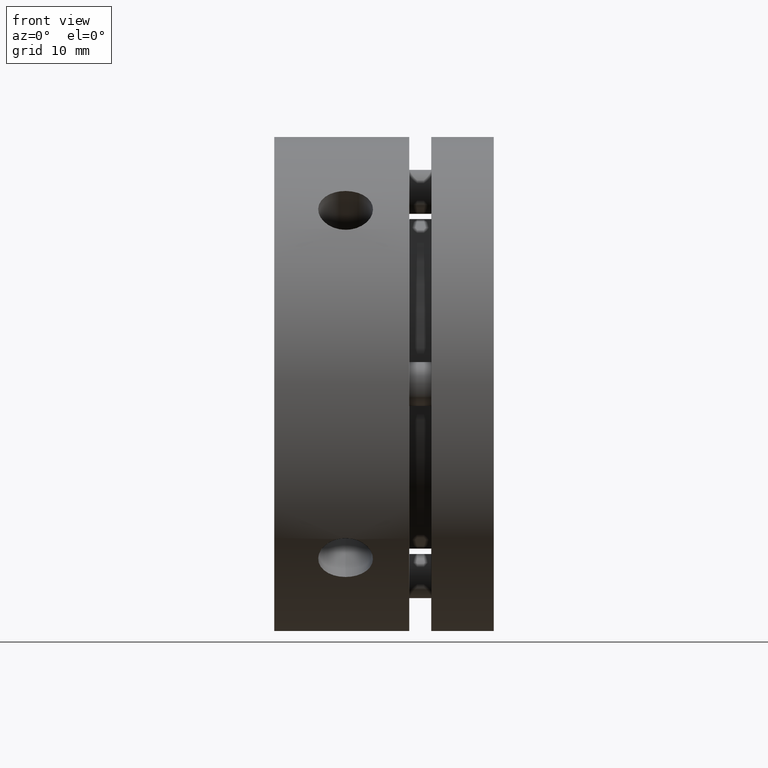
[diagram: clean part render]
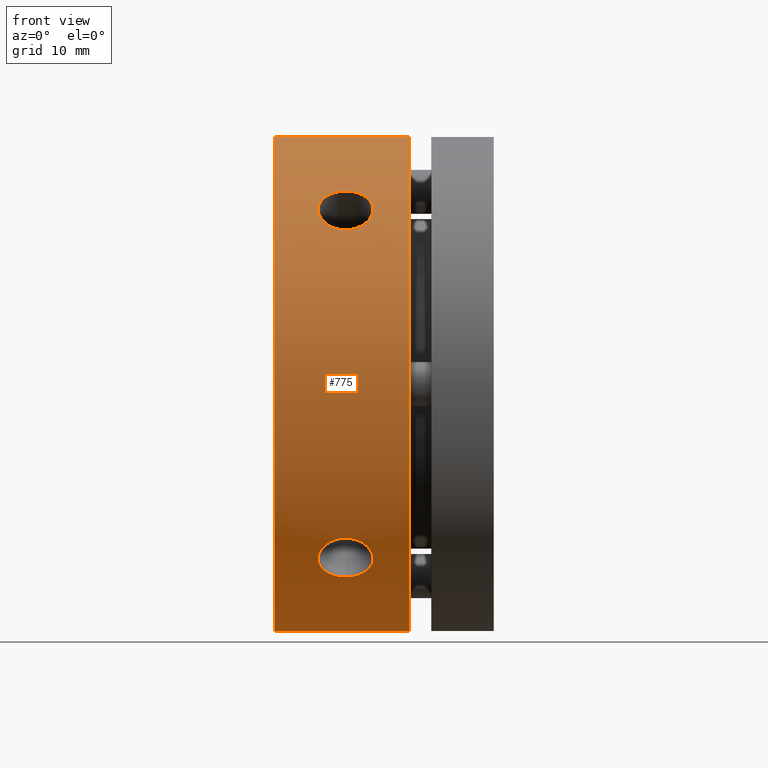
[diagram: same view with one face highlighted and labeled with its STEP entity id]
A machine part, front view. The second image highlights one B-rep face of the part: STEP entity #775.
In plain terms, the highlighted cylindrical surface (partial cylindrical patch) has radius 22.5 mm, axis along (1, 0, 0).
Its self-contained STEP definition (entity closure, byte-faithful):
#18 = CARTESIAN_POINT ( 'NONE',  ( 9.999999999999994700, 2.755455298081544800E-015, 22.50000000000000000 ) ) ;
#133 = EDGE_LOOP ( 'NONE', ( #1150, #1151, #1152, #1153 ) ) ;
#134 = EDGE_LOOP ( 'NONE', ( #1156, #1157 ) ) ;
#331 = EDGE_CURVE ( 'NONE', #454, #453, #1518, .T. ) ;
#334 = EDGE_CURVE ( 'NONE', #447, #440, #1520, .T. ) ;
#339 = EDGE_CURVE ( 'NONE', #449, #450, #418, .T. ) ;
#343 = EDGE_CURVE ( 'NONE', #456, #457, #419, .T. ) ;
#418 = B_SPLINE_CURVE_WITH_KNOTS ( 'NONE', 3,
 ( #2132, #2129, #2095, #2133, #2134, #2135, #2136, #2137, #2138, #2139, #2140, #2141, #2142, #2143, #2144, #2145, #2146, #2147, #2148, #2149, #2150, #2151, #2152, #2153, #2154, #2155, #2156, #2157, #2158, #2159, #2160, #2161, #2162, #2163 ),
 .UNSPECIFIED., .F., .F.,
 ( 4, 2, 2, 2, 2, 2, 2, 2, 2, 2, 2, 2, 2, 2, 2, 2, 4 ),
 ( 0.01173242231639721000, 0.01222119876057258500, 0.01270997520474796200, 0.01319875164892333700, 0.01368752809309871400, 0.01417630453727408900, 0.01466508098144946400, 0.01515385742562484100, 0.01564263386980021400, 0.01613141031397559100, 0.01662018675815097100, 0.01710896320232634800, 0.01759773964650172800, 0.01808651609067710900, 0.01857529253485248900, 0.01906406897902786600, 0.01955284542320324600 ),
 .UNSPECIFIED. ) ;
#419 = B_SPLINE_CURVE_WITH_KNOTS ( 'NONE', 3,
 ( #2173, #2171, #2166, #2174, #2175, #2176, #2177, #2178, #2179, #2180, #2181, #2182, #2183, #2184, #2185, #2186, #2187, #2188, #2189, #2190, #2191, #2192, #2193, #2194, #2195, #2196, #2197, #2198, #2199, #2200, #2201, #2202, #2203, #2204 ),
 .UNSPECIFIED., .F., .F.,
 ( 4, 2, 2, 2, 2, 2, 2, 2, 2, 2, 2, 2, 2, 2, 2, 2, 4 ),
 ( 0.01173242231639721300, 0.01222119876057258800, 0.01270997520474796300, 0.01319875164892334000, 0.01368752809309871500, 0.01417630453727409000, 0.01466508098144946700, 0.01515385742562484200, 0.01564263386980021700, 0.01613141031397559400, 0.01662018675815097100, 0.01710896320232635100, 0.01759773964650172800, 0.01808651609067710900, 0.01857529253485248900, 0.01906406897902786900, 0.01955284542320324600 ),
 .UNSPECIFIED. ) ;
#420 = B_SPLINE_CURVE_WITH_KNOTS ( 'NONE', 3,
 ( #3302, #3303, #3308, #3309, #3310, #3311, #3312, #3313, #3314, #3315, #3316, #3317, #3318, #3319, #3320, #3321, #3322, #3323, #3324, #3325, #3326, #3327, #3328, #3329, #3330, #3331, #3332, #3333, #3334, #3335, #3336, #3337, #3338, #3339 ),
 .UNSPECIFIED., .F., .F.,
 ( 4, 2, 2, 2, 2, 2, 2, 2, 2, 2, 2, 2, 2, 2, 2, 2, 4 ),
 ( 0.003911999203216443900, 0.004400775647790240700, 0.004889552092364036700, 0.005378328536937833500, 0.005867104981511632100, 0.006355881426085431600, 0.006844657870659230100, 0.007333434315233028700, 0.007822210759806828100, 0.008310987204380625900, 0.008799763648954423600, 0.009288540093528221300, 0.009777316538102020700, 0.01026609298267581800, 0.01075486942724961800, 0.01124364587182341600, 0.01173242231639721300 ),
 .UNSPECIFIED. ) ;
#421 = B_SPLINE_CURVE_WITH_KNOTS ( 'NONE', 3,
 ( #3298, #3307, #3342, #3343, #3344, #3345, #3346, #3347, #3348, #3349, #3350, #3351, #3352, #3353, #3354, #3355, #3356, #3357, #3358, #3359, #3360, #3361, #3362, #3363, #3364, #3365, #3366, #3367, #3368, #3369, #3370, #3371, #3372, #3373 ),
 .UNSPECIFIED., .F., .F.,
 ( 4, 2, 2, 2, 2, 2, 2, 2, 2, 2, 2, 2, 2, 2, 2, 2, 4 ),
 ( 0.003911999203216442100, 0.004400775647790240700, 0.004889552092364038400, 0.005378328536937837000, 0.005867104981511637300, 0.006355881426085438500, 0.006844657870659238800, 0.007333434315233039100, 0.007822210759806835100, 0.008310987204380632800, 0.008799763648954430500, 0.009288540093528226500, 0.009777316538102022400, 0.01026609298267581800, 0.01075486942724961600, 0.01124364587182341200, 0.01173242231639721000 ),
 .UNSPECIFIED. ) ;
#440 = VERTEX_POINT ( 'NONE', #2370 ) ;
#447 = VERTEX_POINT ( 'NONE', #2362 ) ;
#449 = VERTEX_POINT ( 'NONE', #2379 ) ;
#450 = VERTEX_POINT ( 'NONE', #2380 ) ;
#453 = VERTEX_POINT ( 'NONE', #2382 ) ;
#454 = VERTEX_POINT ( 'NONE', #2383 ) ;
#456 = VERTEX_POINT ( 'NONE', #2385 ) ;
#457 = VERTEX_POINT ( 'NONE', #2386 ) ;
#775 = ADVANCED_FACE ( 'NONE', ( #3064, #3068, #3065 ), #3071, .T. ) ;
#791 = EDGE_LOOP ( 'NONE', ( #1154, #1155 ) ) ;
#905 = EDGE_CURVE ( 'NONE', #440, #453, #3224, .T. ) ;
#906 = EDGE_CURVE ( 'NONE', #457, #456, #420, .T. ) ;
#907 = EDGE_CURVE ( 'NONE', #450, #449, #421, .T. ) ;
#908 = EDGE_CURVE ( 'NONE', #454, #447, #3225, .T. ) ;
#1150 = ORIENTED_EDGE ( 'NONE', *, *, #331, .F. ) ;
#1151 = ORIENTED_EDGE ( 'NONE', *, *, #908, .T. ) ;
#1152 = ORIENTED_EDGE ( 'NONE', *, *, #334, .T. ) ;
#1153 = ORIENTED_EDGE ( 'NONE', *, *, #905, .T. ) ;
#1154 = ORIENTED_EDGE ( 'NONE', *, *, #339, .T. ) ;
#1155 = ORIENTED_EDGE ( 'NONE', *, *, #907, .T. ) ;
#1156 = ORIENTED_EDGE ( 'NONE', *, *, #343, .T. ) ;
#1157 = ORIENTED_EDGE ( 'NONE', *, *, #906, .T. ) ;
#1352 = AXIS2_PLACEMENT_3D ( 'NONE', #2696, #2697, #2695 ) ;
#1442 = AXIS2_PLACEMENT_3D ( 'NONE', #3304, #3305, #3306 ) ;
#1443 = AXIS2_PLACEMENT_3D ( 'NONE', #3374, #3375, #3376 ) ;
#1518 = LINE ( 'NONE', #18, #1521 ) ;
#1520 = LINE ( 'NONE', #2053, #1525 ) ;
#1521 = VECTOR ( 'NONE', #2048, 1000.000000000000000 ) ;
#1525 = VECTOR ( 'NONE', #2049, 1000.000000000000000 ) ;
#2048 = DIRECTION ( 'NONE',  ( 1.000000000000000000, 0.0000000000000000000, 0.0000000000000000000 ) ) ;
#2049 = DIRECTION ( 'NONE',  ( 1.000000000000000000, 0.0000000000000000000, 0.0000000000000000000 ) ) ;
#2053 = CARTESIAN_POINT ( 'NONE',  ( 9.999999999999994700, 0.0000000000000000000, -22.50000000000000000 ) ) ;
#2095 = CARTESIAN_POINT ( 'NONE',  ( 6.171090007578761100, -17.56890217144555400, 14.05648292721125800 ) ) ;
#2129 = CARTESIAN_POINT ( 'NONE',  ( 6.336834521531878700, -17.57915525380826700, 14.04362134787553300 ) ) ;
#2132 = CARTESIAN_POINT ( 'NONE',  ( 6.499999999999992900, -17.57915525380826700, 14.04362134787552700 ) ) ;
#2133 = CARTESIAN_POINT ( 'NONE',  ( 5.850448389558097000, -17.52861790615664400, 14.10668600674058500 ) ) ;
#2134 = CARTESIAN_POINT ( 'NONE',  ( 5.694589796624702800, -17.49880229077756900, 14.14375807418896400 ) ) ;
#2135 = CARTESIAN_POINT ( 'NONE',  ( 5.391840746390807100, -17.41927253684769300, 14.24159114565264200 ) ) ;
#2136 = CARTESIAN_POINT ( 'NONE',  ( 5.245677012930385400, -17.36944586711570400, 14.30246863063636600 ) ) ;
#2137 = CARTESIAN_POINT ( 'NONE',  ( 4.975028642675195700, -17.25334612264189400, 14.44230958791972700 ) ) ;
#2138 = CARTESIAN_POINT ( 'NONE',  ( 4.848778738432797800, -17.18664625045742900, 14.52180719922919900 ) ) ;
#2139 = CARTESIAN_POINT ( 'NONE',  ( 4.615488460062465500, -17.03466803667306100, 14.69978838454135500 ) ) ;
#2140 = CARTESIAN_POINT ( 'NONE',  ( 4.512201296588721700, -16.95184193531017100, 14.79538561576184300 ) ) ;
#2141 = CARTESIAN_POINT ( 'NONE',  ( 4.331257138296142500, -16.77231696932634000, 14.99859206723352600 ) ) ;
#2142 = CARTESIAN_POINT ( 'NONE',  ( 4.252970886097018300, -16.67444543535752300, 15.10747557303519200 ) ) ;
#2143 = CARTESIAN_POINT ( 'NONE',  ( 4.127594110941597400, -16.46951109140387400, 15.33062794463080700 ) ) ;
#2144 = CARTESIAN_POINT ( 'NONE',  ( 4.080313794223385100, -16.36293210257587200, 15.44442146952498600 ) ) ;
#2145 = CARTESIAN_POINT ( 'NONE',  ( 4.016349612376156000, -16.14119281509124400, 15.67601977632968700 ) ) ;
#2146 = CARTESIAN_POINT ( 'NONE',  ( 3.999880785371837000, -16.02548652508895800, 15.79433736107236200 ) ) ;
#2147 = CARTESIAN_POINT ( 'NONE',  ( 4.000120529971881400, -15.79175401374240700, 16.02803220019925200 ) ) ;
#2148 = CARTESIAN_POINT ( 'NONE',  ( 4.016463612904607000, -15.67557156238662900, 16.14162339942732400 ) ) ;
#2149 = CARTESIAN_POINT ( 'NONE',  ( 4.080258677617862900, -15.44465651224615100, 16.36270561353397600 ) ) ;
#2150 = CARTESIAN_POINT ( 'NONE',  ( 4.128496438647709400, -15.32868502898407400, 16.47131874734074600 ) ) ;
#2151 = CARTESIAN_POINT ( 'NONE',  ( 4.254206005333722700, -15.10561993020592600, 16.67612582461720200 ) ) ;
#2152 = CARTESIAN_POINT ( 'NONE',  ( 4.331087587242889100, -14.99875953336863300, 16.77217083986406700 ) ) ;
#2153 = CARTESIAN_POINT ( 'NONE',  ( 4.512672305383290400, -14.79487964044526100, 16.95228712139282500 ) ) ;
#2154 = CARTESIAN_POINT ( 'NONE',  ( 4.618250905935206600, -14.69754720084648100, 17.03659122857233800 ) ) ;
#2155 = CARTESIAN_POINT ( 'NONE',  ( 4.848825465913805000, -14.52190685513345500, 17.18655159423804300 ) ) ;
#2156 = CARTESIAN_POINT ( 'NONE',  ( 4.974651334486486200, -14.44243566964261100, 17.25324486753801500 ) ) ;
#2157 = CARTESIAN_POINT ( 'NONE',  ( 5.247985968824259800, -14.30134497684619700, 17.37037530925075800 ) ) ;
#2158 = CARTESIAN_POINT ( 'NONE',  ( 5.393313186711863800, -14.24108610244663200, 17.41968383630842600 ) ) ;
#2159 = CARTESIAN_POINT ( 'NONE',  ( 5.694115060324576500, -14.14394080737749900, 17.49865299877808400 ) ) ;
#2160 = CARTESIAN_POINT ( 'NONE',  ( 5.851819053499025500, -14.10634303127202900, 17.52889400127216700 ) ) ;
#2161 = CARTESIAN_POINT ( 'NONE',  ( 6.174556241274206800, -14.05607052486627000, 17.56923219790033000 ) ) ;
#2162 = CARTESIAN_POINT ( 'NONE',  ( 6.336834231173869900, -14.04362134787551900, 17.57915525380825300 ) ) ;
#2163 = CARTESIAN_POINT ( 'NONE',  ( 6.499999999999992900, -14.04362134787552600, 17.57915525380826700 ) ) ;
#2166 = CARTESIAN_POINT ( 'NONE',  ( 6.171090007578761100, -14.05648292721125800, -17.56890217144555400 ) ) ;
#2171 = CARTESIAN_POINT ( 'NONE',  ( 6.336834521531878700, -14.04362134787553300, -17.57915525380826700 ) ) ;
#2173 = CARTESIAN_POINT ( 'NONE',  ( 6.499999999999992900, -14.04362134787552700, -17.57915525380826700 ) ) ;
#2174 = CARTESIAN_POINT ( 'NONE',  ( 5.850448389558098800, -14.10668600674058700, -17.52861790615664400 ) ) ;
#2175 = CARTESIAN_POINT ( 'NONE',  ( 5.694589796624701900, -14.14375807418897000, -17.49880229077756900 ) ) ;
#2176 = CARTESIAN_POINT ( 'NONE',  ( 5.391840746390807100, -14.24159114565264000, -17.41927253684768900 ) ) ;
#2177 = CARTESIAN_POINT ( 'NONE',  ( 5.245677012930383600, -14.30246863063636700, -17.36944586711570100 ) ) ;
#2178 = CARTESIAN_POINT ( 'NONE',  ( 4.975028642675193100, -14.44230958791973100, -17.25334612264189400 ) ) ;
#2179 = CARTESIAN_POINT ( 'NONE',  ( 4.848778738432796900, -14.52180719922919900, -17.18664625045742900 ) ) ;
#2180 = CARTESIAN_POINT ( 'NONE',  ( 4.615488460062466400, -14.69978838454135200, -17.03466803667306100 ) ) ;
#2181 = CARTESIAN_POINT ( 'NONE',  ( 4.512201296588719900, -14.79538561576184100, -16.95184193531017100 ) ) ;
#2182 = CARTESIAN_POINT ( 'NONE',  ( 4.331257138296142500, -14.99859206723352600, -16.77231696932634000 ) ) ;
#2183 = CARTESIAN_POINT ( 'NONE',  ( 4.252970886097018300, -15.10747557303518800, -16.67444543535752300 ) ) ;
#2184 = CARTESIAN_POINT ( 'NONE',  ( 4.127594110941597400, -15.33062794463080700, -16.46951109140387400 ) ) ;
#2185 = CARTESIAN_POINT ( 'NONE',  ( 4.080313794223385100, -15.44442146952498600, -16.36293210257587200 ) ) ;
#2186 = CARTESIAN_POINT ( 'NONE',  ( 4.016349612376156000, -15.67601977632968700, -16.14119281509124400 ) ) ;
#2187 = CARTESIAN_POINT ( 'NONE',  ( 3.999880785371837000, -15.79433736107236200, -16.02548652508895800 ) ) ;
#2188 = CARTESIAN_POINT ( 'NONE',  ( 4.000120529971881400, -16.02803220019925200, -15.79175401374240700 ) ) ;
#2189 = CARTESIAN_POINT ( 'NONE',  ( 4.016463612904607000, -16.14162339942732400, -15.67557156238662900 ) ) ;
#2190 = CARTESIAN_POINT ( 'NONE',  ( 4.080258677617862900, -16.36270561353397600, -15.44465651224615100 ) ) ;
#2191 = CARTESIAN_POINT ( 'NONE',  ( 4.128496438647709400, -16.47131874734074600, -15.32868502898407400 ) ) ;
#2192 = CARTESIAN_POINT ( 'NONE',  ( 4.254206005333722700, -16.67612582461720200, -15.10561993020592200 ) ) ;
#2193 = CARTESIAN_POINT ( 'NONE',  ( 4.331087587242890000, -16.77217083986406700, -14.99875953336863300 ) ) ;
#2194 = CARTESIAN_POINT ( 'NONE',  ( 4.512672305383292200, -16.95228712139282500, -14.79487964044526100 ) ) ;
#2195 = CARTESIAN_POINT ( 'NONE',  ( 4.618250905935206600, -17.03659122857233800, -14.69754720084648300 ) ) ;
#2196 = CARTESIAN_POINT ( 'NONE',  ( 4.848825465913805000, -17.18655159423804300, -14.52190685513345500 ) ) ;
#2197 = CARTESIAN_POINT ( 'NONE',  ( 4.974651334486484400, -17.25324486753801500, -14.44243566964261500 ) ) ;
#2198 = CARTESIAN_POINT ( 'NONE',  ( 5.247985968824258100, -17.37037530925075800, -14.30134497684619700 ) ) ;
#2199 = CARTESIAN_POINT ( 'NONE',  ( 5.393313186711865500, -17.41968383630842600, -14.24108610244663000 ) ) ;
#2200 = CARTESIAN_POINT ( 'NONE',  ( 5.694115060324575600, -17.49865299877808400, -14.14394080737749900 ) ) ;
#2201 = CARTESIAN_POINT ( 'NONE',  ( 5.851819053499026400, -17.52889400127216700, -14.10634303127202900 ) ) ;
#2202 = CARTESIAN_POINT ( 'NONE',  ( 6.174556241274204100, -17.56923219790033000, -14.05607052486627000 ) ) ;
#2203 = CARTESIAN_POINT ( 'NONE',  ( 6.336834231173869900, -17.57915525380825300, -14.04362134787551900 ) ) ;
#2204 = CARTESIAN_POINT ( 'NONE',  ( 6.499999999999992900, -17.57915525380826700, -14.04362134787552600 ) ) ;
#2362 = CARTESIAN_POINT ( 'NONE',  ( -5.204170427930421300E-015, 0.0000000000000000000, -22.50000000000000000 ) ) ;
#2370 = CARTESIAN_POINT ( 'NONE',  ( 12.30000000000000100, 0.0000000000000000000, -22.50000000000000000 ) ) ;
#2379 = CARTESIAN_POINT ( 'NONE',  ( 6.499999999999992900, -17.57915525380826700, 14.04362134787552700 ) ) ;
#2380 = CARTESIAN_POINT ( 'NONE',  ( 6.499999999999992900, -14.04362134787552600, 17.57915525380826700 ) ) ;
#2382 = CARTESIAN_POINT ( 'NONE',  ( 12.30000000000000100, 2.755455298081544800E-015, 22.50000000000000000 ) ) ;
#2383 = CARTESIAN_POINT ( 'NONE',  ( -5.204170427930421300E-015, 2.755455298081544800E-015, 22.50000000000000000 ) ) ;
#2385 = CARTESIAN_POINT ( 'NONE',  ( 6.499999999999992900, -14.04362134787552700, -17.57915525380826700 ) ) ;
#2386 = CARTESIAN_POINT ( 'NONE',  ( 6.499999999999992900, -17.57915525380826700, -14.04362134787552600 ) ) ;
#2695 = DIRECTION ( 'NONE',  ( 0.0000000000000000000, 0.0000000000000000000, -1.000000000000000000 ) ) ;
#2696 = CARTESIAN_POINT ( 'NONE',  ( 9.999999999999994700, 0.0000000000000000000, 0.0000000000000000000 ) ) ;
#2697 = DIRECTION ( 'NONE',  ( 1.000000000000000000, 0.0000000000000000000, 0.0000000000000000000 ) ) ;
#3064 = FACE_OUTER_BOUND ( 'NONE', #133, .T. ) ;
#3065 = FACE_BOUND ( 'NONE', #134, .T. ) ;
#3068 = FACE_BOUND ( 'NONE', #791, .T. ) ;
#3071 = CYLINDRICAL_SURFACE ( 'NONE', #1352, 22.50000000000000000 ) ;
#3224 = CIRCLE ( 'NONE', #1442, 22.50000000000000000 ) ;
#3225 = CIRCLE ( 'NONE', #1443, 22.50000000000000000 ) ;
#3298 = CARTESIAN_POINT ( 'NONE',  ( 6.499999999999992900, -14.04362134787552600, 17.57915525380826700 ) ) ;
#3302 = CARTESIAN_POINT ( 'NONE',  ( 6.499999999999992900, -17.57915525380826700, -14.04362134787552600 ) ) ;
#3303 = CARTESIAN_POINT ( 'NONE',  ( 6.663165768959119700, -17.57915525380826700, -14.04362134787552900 ) ) ;
#3304 = CARTESIAN_POINT ( 'NONE',  ( 12.30000000000000100, 0.0000000000000000000, 0.0000000000000000000 ) ) ;
#3305 = DIRECTION ( 'NONE',  ( -1.000000000000000000, -0.0000000000000000000, -0.0000000000000000000 ) ) ;
#3306 = DIRECTION ( 'NONE',  ( 0.0000000000000000000, 0.0000000000000000000, -1.000000000000000000 ) ) ;
#3307 = CARTESIAN_POINT ( 'NONE',  ( 6.663165768959118800, -14.04362134787553100, 17.57915525380827000 ) ) ;
#3308 = CARTESIAN_POINT ( 'NONE',  ( 6.828910579315096800, -17.56890213454291700, -14.05648297359296700 ) ) ;
#3309 = CARTESIAN_POINT ( 'NONE',  ( 7.149552736107016100, -17.52861772789931600, -14.10668622849566700 ) ) ;
#3310 = CARTESIAN_POINT ( 'NONE',  ( 7.305411583109709300, -17.49880200840960900, -14.14375842453337000 ) ) ;
#3311 = CARTESIAN_POINT ( 'NONE',  ( 7.608161107862806600, -17.41927196967200700, -14.24159184036946600 ) ) ;
#3312 = CARTESIAN_POINT ( 'NONE',  ( 7.754325012955959600, -17.36944513332652200, -14.30246952368510600 ) ) ;
#3313 = CARTESIAN_POINT ( 'NONE',  ( 8.024973668066593300, -17.25334499615012600, -14.44231093556025900 ) ) ;
#3314 = CARTESIAN_POINT ( 'NONE',  ( 8.151223738080966900, -17.18664486059570600, -14.52180884691466300 ) ) ;
#3315 = CARTESIAN_POINT ( 'NONE',  ( 8.384514047468654100, -17.03466617964698700, -14.69979053927505900 ) ) ;
#3316 = CARTESIAN_POINT ( 'NONE',  ( 8.487801188851296500, -16.95183982260646600, -14.79538804010602600 ) ) ;
#3317 = CARTESIAN_POINT ( 'NONE',  ( 8.668745208405839600, -16.77231428777834700, -14.99859506955919400 ) ) ;
#3318 = CARTESIAN_POINT ( 'NONE',  ( 8.747031343587554600, -16.67444242258249400, -15.10747890195836300 ) ) ;
#3319 = CARTESIAN_POINT ( 'NONE',  ( 8.872407677215917900, -16.46950753680329200, -15.33063176690103400 ) ) ;
#3320 = CARTESIAN_POINT ( 'NONE',  ( 8.919687729553141200, -16.36292826254909700, -15.44442554204110600 ) ) ;
#3321 = CARTESIAN_POINT ( 'NONE',  ( 8.983651255278804400, -16.14118836488816600, -15.67602436264305900 ) ) ;
#3322 = CARTESIAN_POINT ( 'NONE',  ( 9.000119675582380900, -16.02548130832110500, -15.79434265027212400 ) ) ;
#3323 = CARTESIAN_POINT ( 'NONE',  ( 8.999878998819482900, -15.79174925268014500, -16.02803688721829200 ) ) ;
#3324 = CARTESIAN_POINT ( 'NONE',  ( 8.983535530076769900, -15.67556702584186500, -16.14162780151749000 ) ) ;
#3325 = CARTESIAN_POINT ( 'NONE',  ( 8.919739796451363400, -15.44465242343004600, -16.36270946951695400 ) ) ;
#3326 = CARTESIAN_POINT ( 'NONE',  ( 8.871501739446756600, -15.32868115883968400, -16.47132234499850900 ) ) ;
#3327 = CARTESIAN_POINT ( 'NONE',  ( 8.745791791740741100, -15.10561665851702000, -16.67612878422767500 ) ) ;
#3328 = CARTESIAN_POINT ( 'NONE',  ( 8.668910078699754600, -14.99875654375770900, -16.77217351029027600 ) ) ;
#3329 = CARTESIAN_POINT ( 'NONE',  ( 8.487325183862056500, -14.79487719040261100, -16.95228925659015900 ) ) ;
#3330 = CARTESIAN_POINT ( 'NONE',  ( 8.381746579683758500, -14.69754505017647300, -17.03659308143048500 ) ) ;
#3331 = CARTESIAN_POINT ( 'NONE',  ( 8.151172126953536400, -14.52190525684172500, -17.18655294221400700 ) ) ;
#3332 = CARTESIAN_POINT ( 'NONE',  ( 8.025346351435015200, -14.44243431866586900, -17.25324599686321400 ) ) ;
#3333 = CARTESIAN_POINT ( 'NONE',  ( 7.752011969598574300, -14.30134406918638000, -17.37037605499666500 ) ) ;
#3334 = CARTESIAN_POINT ( 'NONE',  ( 7.606684984272919600, -14.24108541757735400, -17.41968439543205000 ) ) ;
#3335 = CARTESIAN_POINT ( 'NONE',  ( 7.305883558449693300, -14.14394045548628800, -17.49865328243438600 ) ) ;
#3336 = CARTESIAN_POINT ( 'NONE',  ( 7.148179801653844500, -14.10634280690164000, -17.52889418162070000 ) ) ;
#3337 = CARTESIAN_POINT ( 'NONE',  ( 6.825443181402799400, -14.05607048097588700, -17.56923223280175600 ) ) ;
#3338 = CARTESIAN_POINT ( 'NONE',  ( 6.663165478601111900, -14.04362134787552700, -17.57915525380826700 ) ) ;
#3339 = CARTESIAN_POINT ( 'NONE',  ( 6.499999999999992900, -14.04362134787552700, -17.57915525380826700 ) ) ;
#3342 = CARTESIAN_POINT ( 'NONE',  ( 6.828910579315095000, -14.05648297359296700, 17.56890213454290600 ) ) ;
#3343 = CARTESIAN_POINT ( 'NONE',  ( 7.149552736107016100, -14.10668622849566700, 17.52861772789931300 ) ) ;
#3344 = CARTESIAN_POINT ( 'NONE',  ( 7.305411583109710200, -14.14375842453337000, 17.49880200840960900 ) ) ;
#3345 = CARTESIAN_POINT ( 'NONE',  ( 7.608161107862807500, -14.24159184036946400, 17.41927196967200300 ) ) ;
#3346 = CARTESIAN_POINT ( 'NONE',  ( 7.754325012955958700, -14.30246952368511000, 17.36944513332652900 ) ) ;
#3347 = CARTESIAN_POINT ( 'NONE',  ( 8.024973668066593300, -14.44231093556025900, 17.25334499615012600 ) ) ;
#3348 = CARTESIAN_POINT ( 'NONE',  ( 8.151223738080966900, -14.52180884691466100, 17.18664486059570600 ) ) ;
#3349 = CARTESIAN_POINT ( 'NONE',  ( 8.384514047468655900, -14.69979053927506000, 17.03466617964699700 ) ) ;
#3350 = CARTESIAN_POINT ( 'NONE',  ( 8.487801188851296500, -14.79538804010602600, 16.95183982260646600 ) ) ;
#3351 = CARTESIAN_POINT ( 'NONE',  ( 8.668745208405839600, -14.99859506955918900, 16.77231428777834700 ) ) ;
#3352 = CARTESIAN_POINT ( 'NONE',  ( 8.747031343587554600, -15.10747890195836300, 16.67444242258249100 ) ) ;
#3353 = CARTESIAN_POINT ( 'NONE',  ( 8.872407677215917900, -15.33063176690103000, 16.46950753680328800 ) ) ;
#3354 = CARTESIAN_POINT ( 'NONE',  ( 8.919687729553144700, -15.44442554204111500, 16.36292826254910400 ) ) ;
#3355 = CARTESIAN_POINT ( 'NONE',  ( 8.983651255278804400, -15.67602436264305500, 16.14118836488816600 ) ) ;
#3356 = CARTESIAN_POINT ( 'NONE',  ( 9.000119675582384500, -15.79434265027212800, 16.02548130832110800 ) ) ;
#3357 = CARTESIAN_POINT ( 'NONE',  ( 8.999878998819481200, -16.02803688721829200, 15.79174925268014500 ) ) ;
#3358 = CARTESIAN_POINT ( 'NONE',  ( 8.983535530076768100, -16.14162780151749000, 15.67556702584186500 ) ) ;
#3359 = CARTESIAN_POINT ( 'NONE',  ( 8.919739796451363400, -16.36270946951695400, 15.44465242343004600 ) ) ;
#3360 = CARTESIAN_POINT ( 'NONE',  ( 8.871501739446754800, -16.47132234499850900, 15.32868115883968400 ) ) ;
#3361 = CARTESIAN_POINT ( 'NONE',  ( 8.745791791740742800, -16.67612878422767500, 15.10561665851701800 ) ) ;
#3362 = CARTESIAN_POINT ( 'NONE',  ( 8.668910078699752800, -16.77217351029028000, 14.99875654375770800 ) ) ;
#3363 = CARTESIAN_POINT ( 'NONE',  ( 8.487325183862056500, -16.95228925659016300, 14.79487719040261200 ) ) ;
#3364 = CARTESIAN_POINT ( 'NONE',  ( 8.381746579683760200, -17.03659308143049200, 14.69754505017647300 ) ) ;
#3365 = CARTESIAN_POINT ( 'NONE',  ( 8.151172126953538200, -17.18655294221401100, 14.52190525684173400 ) ) ;
#3366 = CARTESIAN_POINT ( 'NONE',  ( 8.025346351435018700, -17.25324599686321700, 14.44243431866587100 ) ) ;
#3367 = CARTESIAN_POINT ( 'NONE',  ( 7.752011969598573400, -17.37037605499666900, 14.30134406918638500 ) ) ;
#3368 = CARTESIAN_POINT ( 'NONE',  ( 7.606684984272916900, -17.41968439543205000, 14.24108541757735400 ) ) ;
#3369 = CARTESIAN_POINT ( 'NONE',  ( 7.305883558449692400, -17.49865328243439000, 14.14394045548628400 ) ) ;
#3370 = CARTESIAN_POINT ( 'NONE',  ( 7.148179801653844500, -17.52889418162070400, 14.10634280690164200 ) ) ;
#3371 = CARTESIAN_POINT ( 'NONE',  ( 6.825443181402799400, -17.56923223280175600, 14.05607048097588300 ) ) ;
#3372 = CARTESIAN_POINT ( 'NONE',  ( 6.663165478601109200, -17.57915525380826300, 14.04362134787552400 ) ) ;
#3373 = CARTESIAN_POINT ( 'NONE',  ( 6.499999999999992900, -17.57915525380826700, 14.04362134787552700 ) ) ;
#3374 = CARTESIAN_POINT ( 'NONE',  ( -5.204170427930421300E-015, 0.0000000000000000000, 0.0000000000000000000 ) ) ;
#3375 = DIRECTION ( 'NONE',  ( 1.000000000000000000, 0.0000000000000000000, 0.0000000000000000000 ) ) ;
#3376 = DIRECTION ( 'NONE',  ( 0.0000000000000000000, 0.0000000000000000000, -1.000000000000000000 ) ) ;